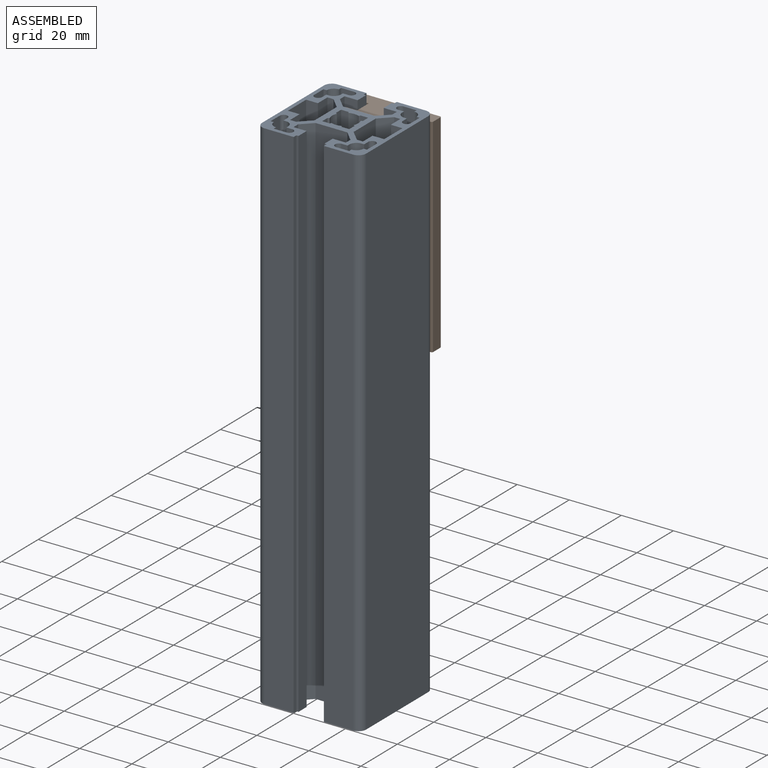
[diagram: assembled view]
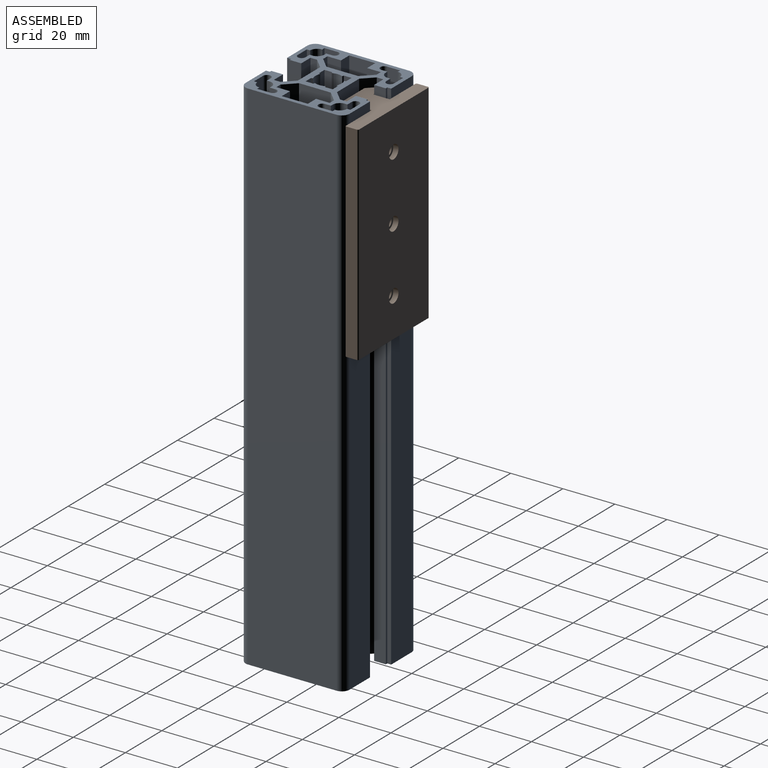
[diagram: assembled view, second angle]
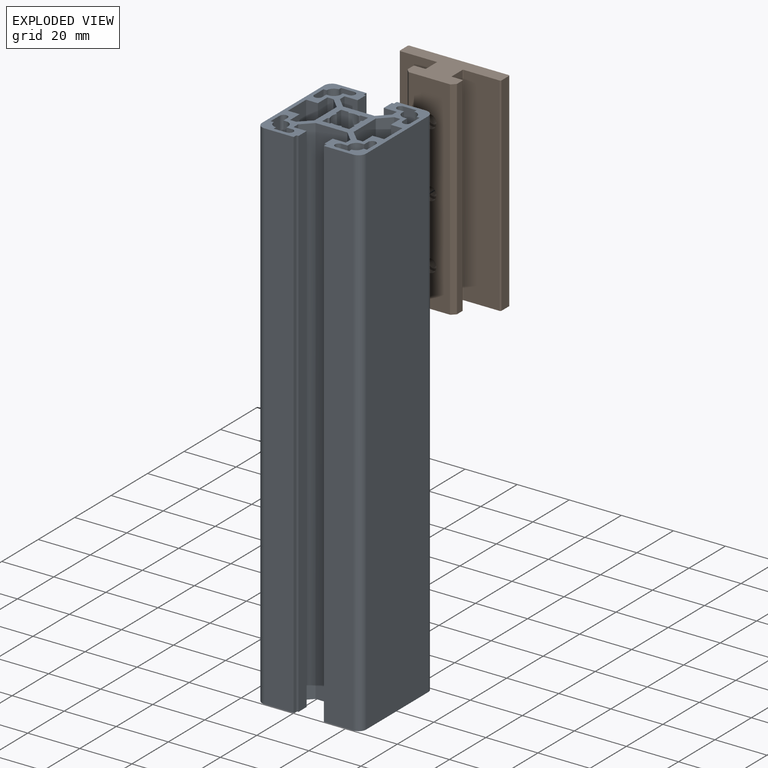
[diagram: exploded view]
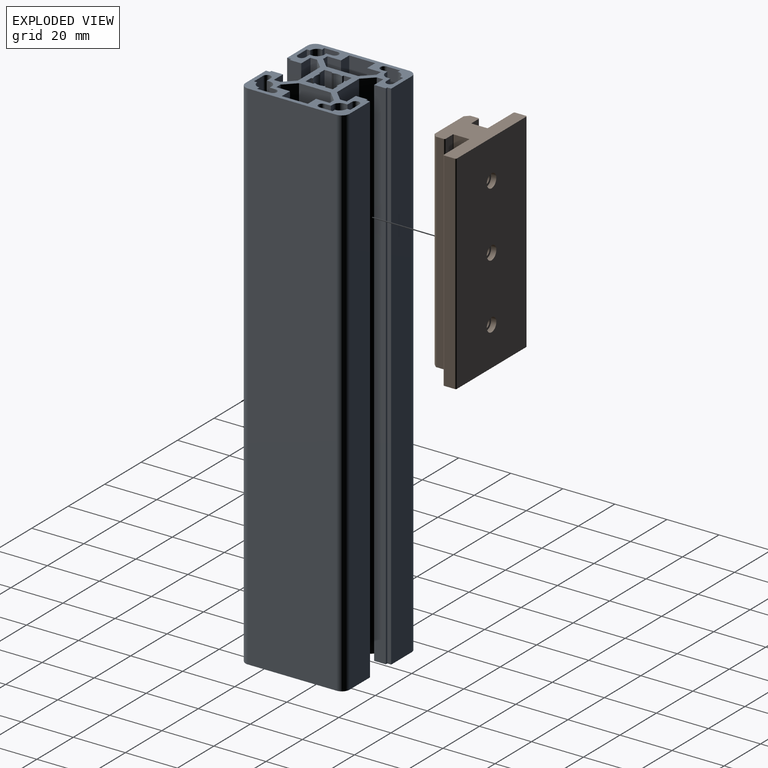
[diagram: exploded view, second angle]
ASSEMBLY  parts=2 mates=2
PART A: 126 faces, bbox 40x40x200 mm
  f0: cylinder r=1.5mm len=200mm, axis (0,0,1), area 942.5mm2, adj f39,f40,f116,f117
  f1: cylinder r=1.5mm len=200mm, axis (0,0,1), area 942.5mm2, adj f39,f40,f104,f114
  f2: cylinder r=5mm len=200mm, axis (0,0,1), area 820.1mm2, adj f39,f40,f51,f69
  f3: plane 200x1.5mm, normal (-1,0,0), area 300mm2, adj f4,f38,f39,f40
  f4: plane 200x0.8mm, normal (0,-1,0), area 160mm2, adj f3,f5,f39,f40
  f5: plane 200x4.5mm, normal (-1,0,0), area 900mm2, adj f4,f6,f39,f40
  f6: plane 200x5.05mm, normal (0,1,0), area 1010mm2, adj f5,f7,f39,f40
  f7: plane 200x2.54mm, normal (-1,0,0), area 507.2mm2, adj f6,f8,f39,f40
  f8: plane 200x3.96mm, normal (-0.71,-0.71,0), area 1121.2mm2, adj f7,f9,f39,f40
  f9: plane 200x12.17mm, normal (0,-1,0), area 2434.3mm2, adj f8,f10,f39,f40
  f10: plane 200x3.96mm, normal (0.71,-0.71,0), area 1121.2mm2, adj f9,f11,f39,f40
  f11: plane 200x2.54mm, normal (1,0,0), area 507.2mm2, adj f10,f12,f39,f40
  f12: plane 200x5.05mm, normal (0,1,0), area 1010mm2, adj f11,f13,f39,f40
  f13: plane 200x4.5mm, normal (1,0,0), area 900mm2, adj f12,f14,f39,f40
  f14: plane 200x0.8mm, normal (0,-1,0), area 160mm2, adj f13,f15,f39,f40
  f15: plane 200x1.5mm, normal (1,0,0), area 300mm2, adj f14,f16,f39,f40
  f16: plane 200x11.2mm, normal (0,-1,0), area 2240mm2, adj f15,f17,f39,f40
  f17: cylinder r=3mm len=200mm, axis (0,0,1), area 942.5mm2, adj f16,f18,f39,f40
  f18: plane 200x34mm, normal (-1,0,0), area 6800mm2, adj f17,f19,f39,f40
  f19: cylinder r=3mm len=200mm, axis (0,0,1), area 942.5mm2, adj f18,f20,f39,f40
  f20: plane 200x11.2mm, normal (0,1,0), area 2240mm2, adj f19,f21,f39,f40
  f21: plane 200x1.5mm, normal (1,0,0), area 300mm2, adj f20,f22,f39,f40
  f22: plane 200x0.8mm, normal (0,1,0), area 160mm2, adj f21,f23,f39,f40
  f23: plane 200x4.5mm, normal (1,0,0), area 900mm2, adj f22,f24,f39,f40
  f24: plane 200x5.05mm, normal (0,-1,0), area 1010mm2, adj f23,f25,f39,f40
  f25: plane 200x2.54mm, normal (1,0,0), area 507.2mm2, adj f24,f26,f39,f40
  f26: plane 200x3.96mm, normal (0.71,0.71,0), area 1121.2mm2, adj f25,f27,f39,f40
  f27: plane 200x12.17mm, normal (0,1,0), area 2434.3mm2, adj f26,f28,f39,f40
  f28: plane 200x3.96mm, normal (-0.71,0.71,0), area 1121.2mm2, adj f27,f29,f39,f40
  f29: plane 200x2.54mm, normal (-1,0,0), area 507.2mm2, adj f28,f30,f39,f40
  f30: plane 200x5.05mm, normal (0,-1,0), area 1010mm2, adj f29,f31,f39,f40
  f31: plane 200x4.5mm, normal (-1,0,0), area 900mm2, adj f30,f32,f39,f40
  f32: plane 200x0.8mm, normal (0,1,0), area 160mm2, adj f31,f33,f39,f40
  f33: plane 200x1.5mm, normal (-1,0,0), area 300mm2, adj f32,f34,f39,f40
  f34: plane 200x11.2mm, normal (0,1,0), area 2240mm2, adj f33,f35,f39,f40
  f35: cylinder r=3mm len=200mm, axis (0,0,1), area 942.5mm2, adj f34,f36,f39,f40
  f36: plane 200x34mm, normal (1,0,0), area 6800mm2, adj f35,f37,f39,f40
  f37: cylinder r=3mm len=200mm, axis (0,0,1), area 942.5mm2, adj f36,f38,f39,f40
  f38: plane 200x11.2mm, normal (0,-1,0), area 2240mm2, adj f3,f37,f39,f40
  f39: plane 40x40mm, normal (0,0,-1), area 595.8mm2, adj f0,f1,f2,f3,f4,f5,f6,f7
  f40: plane 40x40mm, normal (0,0,1), area 595.8mm2, adj f0,f1,f2,f3,f4,f5,f6,f7
  f41: plane 200x4.5mm, normal (0,1,0), area 900mm2, adj f39,f40,f42,f50
  f42: plane 200x5.25mm, normal (-1,0,0), area 1050mm2, adj f39,f40,f41,f43
  f43: plane 200x2.34mm, normal (0,1,0), area 467.2mm2, adj f39,f40,f42,f44
  f44: plane 200x4.16mm, normal (0.71,0.71,0), area 1177.8mm2, adj f39,f40,f43,f45
  f45: plane 200x12.17mm, normal (1,0,0), area 2434.3mm2, adj f39,f40,f44,f46
  f46: plane 200x4.16mm, normal (0.71,-0.71,0), area 1177.8mm2, adj f39,f40,f45,f47
  f47: plane 200x2.34mm, normal (0,-1,0), area 467.2mm2, adj f39,f40,f46,f48
  f48: plane 200x5.25mm, normal (-1,0,0), area 1050mm2, adj f39,f40,f47,f49
  f49: plane 200x4.5mm, normal (0,-1,0), area 900mm2, adj f39,f40,f48,f50
  f50: plane 200x10mm, normal (-1,0,0), area 2000mm2, adj f39,f40,f41,f49
  f51: plane 200x0.61mm, normal (-0.4,-0.92,0), area 134mm2, adj f2,f39,f40,f52
  f52: plane 200x2.94mm, normal (-1,0,0), area 587.9mm2, adj f39,f40,f51,f53
  f53: plane 200x2.94mm, normal (0,1,0), area 587.9mm2, adj f39,f40,f52,f54
  f54: plane 200x0.61mm, normal (0.92,0.4,0), area 134mm2, adj f39,f40,f53,f55
  f55: cylinder r=5mm len=200mm, axis (0,0,1), area 820.1mm2, adj f39,f40,f54,f56
  f56: plane 200x0.61mm, normal (-0.92,0.4,0), area 134mm2, adj f39,f40,f55,f57
  f57: plane 200x2.94mm, normal (0,1,0), area 587.9mm2, adj f39,f40,f56,f58
  f58: plane 200x2.94mm, normal (1,0,0), area 587.9mm2, adj f39,f40,f57,f59
  f59: plane 200x0.61mm, normal (0.4,-0.92,0), area 134mm2, adj f39,f40,f58,f60
  f60: cylinder r=5mm len=200mm, axis (0,0,1), area 820.1mm2, adj f39,f40,f59,f61
  f61: plane 200x0.61mm, normal (0.4,0.92,0), area 134mm2, adj f39,f40,f60,f62
  f62: plane 200x2.94mm, normal (1,0,0), area 587.9mm2, adj f39,f40,f61,f63
  f63: plane 200x2.94mm, normal (0,-1,0), area 587.9mm2, adj f39,f40,f62,f64
  f64: plane 200x0.61mm, normal (-0.92,-0.4,0), area 134mm2, adj f39,f40,f63,f65
  f65: cylinder r=5mm len=200mm, axis (0,0,1), area 820.1mm2, adj f39,f40,f64,f66
  f66: plane 200x0.61mm, normal (0.92,-0.4,0), area 134mm2, adj f39,f40,f65,f67
  f67: plane 200x2.94mm, normal (0,-1,0), area 587.9mm2, adj f39,f40,f66,f68
  f68: plane 200x2.94mm, normal (-1,0,0), area 587.9mm2, adj f39,f40,f67,f69
  f69: plane 200x0.61mm, normal (-0.4,0.92,0), area 134mm2, adj f2,f39,f40,f68
  f70: plane 200x1.25mm, normal (-1,0,0), area 250mm2, adj f39,f40,f71,f81
  f71: plane 200x5mm, normal (0,1,0), area 1000mm2, adj f39,f40,f70,f72
  f72: cylinder r=1.5mm len=200mm, axis (0,0,1), area 942.5mm2, adj f39,f40,f71,f73
  f73: plane 200x2.25mm, normal (0,-1,0), area 450mm2, adj f39,f40,f72,f74
  f74: plane 200x1mm, normal (1,0,0), area 200mm2, adj f39,f40,f73,f75
  f75: cylinder r=2.75mm len=200mm, axis (0,0,1), area 863.9mm2, adj f39,f40,f74,f76
  f76: plane 200x1mm, normal (0,-1,0), area 200mm2, adj f39,f40,f75,f77
  f77: plane 200x2.25mm, normal (1,0,0), area 450mm2, adj f39,f40,f76,f78
  f78: cylinder r=1.5mm len=200mm, axis (0,0,1), area 942.5mm2, adj f39,f40,f77,f79
  f79: plane 200x5mm, normal (-1,0,0), area 1000mm2, adj f39,f40,f78,f80
  f80: plane 200x1.25mm, normal (0,1,0), area 250mm2, adj f39,f40,f79,f81
  f81: cylinder r=2.75mm len=200mm, axis (0,0,1), area 863.9mm2, adj f39,f40,f70,f80
  f82: cylinder r=1.5mm len=200mm, axis (0,0,1), area 942.5mm2, adj f39,f40,f83,f93
  f83: plane 200x5mm, normal (0,-1,0), area 1000mm2, adj f39,f40,f82,f84
  f84: plane 200x1.25mm, normal (-1,0,0), area 250mm2, adj f39,f40,f83,f85
  f85: cylinder r=2.75mm len=200mm, axis (0,0,1), area 863.9mm2, adj f39,f40,f84,f86
  f86: plane 200x1.25mm, normal (0,-1,0), area 250mm2, adj f39,f40,f85,f87
  f87: plane 200x5mm, normal (-1,0,0), area 1000mm2, adj f39,f40,f86,f88
  f88: cylinder r=1.5mm len=200mm, axis (0,0,1), area 942.5mm2, adj f39,f40,f87,f89
  f89: plane 200x2.25mm, normal (1,0,0), area 450mm2, adj f39,f40,f88,f90
  f90: plane 200x1mm, normal (0,1,0), area 200mm2, adj f39,f40,f89,f91
  f91: cylinder r=2.75mm len=200mm, axis (0,0,1), area 863.9mm2, adj f39,f40,f90,f92
  f92: plane 200x1mm, normal (1,0,0), area 200mm2, adj f39,f40,f91,f93
  f93: plane 200x2.25mm, normal (0,1,0), area 450mm2, adj f39,f40,f82,f92
  f94: plane 200x4.16mm, normal (-0.71,-0.71,0), area 1177.8mm2, adj f39,f40,f95,f103
  f95: plane 200x12.17mm, normal (-1,0,0), area 2434.3mm2, adj f39,f40,f94,f96
  f96: plane 200x4.16mm, normal (-0.71,0.71,0), area 1177.8mm2, adj f39,f40,f95,f97
  f97: plane 200x2.34mm, normal (0,1,0), area 467.2mm2, adj f39,f40,f96,f98
  f98: plane 200x5.25mm, normal (1,0,0), area 1050mm2, adj f39,f40,f97,f99
  f99: plane 200x4.5mm, normal (0,1,0), area 900mm2, adj f39,f40,f98,f100
  f100: plane 200x10mm, normal (1,0,0), area 2000mm2, adj f39,f40,f99,f101
  f101: plane 200x4.5mm, normal (0,-1,0), area 900mm2, adj f39,f40,f100,f102
  f102: plane 200x5.25mm, normal (1,0,0), area 1050mm2, adj f39,f40,f101,f103
  f103: plane 200x2.34mm, normal (0,-1,0), area 467.2mm2, adj f39,f40,f94,f102
  f104: plane 200x5mm, normal (0,1,0), area 1000mm2, adj f1,f39,f40,f105
  f105: plane 200x1.25mm, normal (1,0,0), area 250mm2, adj f39,f40,f104,f106
  f106: cylinder r=2.75mm len=200mm, axis (0,0,1), area 863.9mm2, adj f39,f40,f105,f107
  f107: plane 200x1.25mm, normal (0,1,0), area 250mm2, adj f39,f40,f106,f108
  f108: plane 200x5mm, normal (1,0,0), area 1000mm2, adj f39,f40,f107,f109
  f109: cylinder r=1.5mm len=200mm, axis (0,0,1), area 942.5mm2, adj f39,f40,f108,f110
  f110: plane 200x2.25mm, normal (-1,0,0), area 450mm2, adj f39,f40,f109,f111
  f111: plane 200x1mm, normal (0,-1,0), area 200mm2, adj f39,f40,f110,f112
  f112: cylinder r=2.75mm len=200mm, axis (0,0,1), area 863.9mm2, adj f39,f40,f111,f113
  f113: plane 200x1mm, normal (-1,0,0), area 200mm2, adj f39,f40,f112,f114
  f114: plane 200x2.25mm, normal (0,-1,0), area 450mm2, adj f1,f39,f40,f113
  f115: plane 200x1.25mm, normal (1,0,0), area 250mm2, adj f39,f40,f116,f125
  f116: plane 200x5mm, normal (0,-1,0), area 1000mm2, adj f0,f39,f40,f115
  f117: plane 200x2.25mm, normal (0,1,0), area 450mm2, adj f0,f39,f40,f118
  f118: plane 200x1mm, normal (-1,0,0), area 200mm2, adj f39,f40,f117,f119
  f119: cylinder r=2.75mm len=200mm, axis (0,0,1), area 863.9mm2, adj f39,f40,f118,f120
  f120: plane 200x1mm, normal (0,1,0), area 200mm2, adj f39,f40,f119,f121
  f121: plane 200x2.25mm, normal (-1,0,0), area 450mm2, adj f39,f40,f120,f122
  f122: cylinder r=1.5mm len=200mm, axis (0,0,1), area 942.5mm2, adj f39,f40,f121,f123
  f123: plane 200x5mm, normal (1,0,0), area 1000mm2, adj f39,f40,f122,f124
  f124: plane 200x1.25mm, normal (0,-1,0), area 250mm2, adj f39,f40,f123,f125
  f125: cylinder r=2.75mm len=200mm, axis (0,0,1), area 863.9mm2, adj f39,f40,f115,f124
PART B: 45 faces, bbox 39x16.3x80 mm
  f0: cylinder r=2.6mm len=5.2mm, axis (0,1,0), area 32.7mm2, adj f16,f44
  f1: cylinder r=1.75mm len=12.3mm, axis (0,1,0), area 135.2mm2, adj f43,f44
  f2: cylinder r=2.6mm len=5.2mm, axis (0,1,0), area 32.7mm2, adj f30,f43
  f3: cylinder r=2.6mm len=5.2mm, axis (0,1,0), area 32.7mm2, adj f16,f42
  f4: cylinder r=1.75mm len=12.3mm, axis (0,1,0), area 135.2mm2, adj f41,f42
  f5: cylinder r=2.6mm len=5.2mm, axis (0,1,0), area 32.7mm2, adj f30,f41
  f6: cylinder r=2.6mm len=5.2mm, axis (0,1,0), area 32.7mm2, adj f16,f40
  f7: cylinder r=1.75mm len=12.3mm, axis (0,1,0), area 135.2mm2, adj f39,f40
  f8: cylinder r=2.6mm len=5.2mm, axis (0,1,0), area 32.7mm2, adj f30,f39
  f9: cylinder r=0.2mm len=80mm, axis (0,0,-1), area 25.1mm2, adj f10,f36,f37,f38
  f10: plane 80x3.85mm, normal (0,1,0), area 308mm2, adj f9,f11,f37,f38
  f11: cylinder r=0.5mm len=80mm, axis (0,0,-1), area 62.8mm2, adj f10,f12,f37,f38
  f12: plane 80x2.79mm, normal (-1,0,0), area 223.4mm2, adj f11,f13,f37,f38
  f13: cylinder r=0.5mm len=80mm, axis (0,0,-1), area 31.4mm2, adj f12,f14,f37,f38
  f14: plane 80x1.21mm, normal (-0.71,-0.71,0), area 136.6mm2, adj f13,f15,f37,f38
  f15: cylinder r=0.5mm len=80mm, axis (0,0,-1), area 31.4mm2, adj f14,f16,f37,f38
  f16: plane 80x15.59mm, normal (0,-1,0), area 1183.2mm2, adj f0,f3,f6,f15,f17,f37,f38
  f17: cylinder r=0.5mm len=80mm, axis (0,0,-1), area 31.4mm2, adj f16,f18,f37,f38
  f18: plane 80x1.21mm, normal (0.71,-0.71,0), area 136.6mm2, adj f17,f19,f37,f38
  f19: cylinder r=0.5mm len=80mm, axis (0,0,-1), area 31.4mm2, adj f18,f20,f37,f38
  f20: plane 80x2.79mm, normal (1,0,0), area 223.4mm2, adj f19,f21,f37,f38
  f21: cylinder r=0.5mm len=80mm, axis (0,0,-1), area 62.8mm2, adj f20,f22,f37,f38
  f22: plane 80x3.85mm, normal (0,1,0), area 308mm2, adj f21,f23,f37,f38
  f23: cylinder r=0.2mm len=80mm, axis (0,0,-1), area 25.1mm2, adj f22,f24,f37,f38
  f24: plane 80x5.9mm, normal (1,0,0), area 472mm2, adj f23,f25,f37,f38
  f25: cylinder r=0.2mm len=80mm, axis (0,0,-1), area 25.1mm2, adj f24,f26,f37,f38
  f26: plane 80x13.85mm, normal (0,-1,0), area 1108mm2, adj f25,f27,f37,f38
  f27: cylinder r=0.5mm len=80mm, axis (0,0,-1), area 62.8mm2, adj f26,f28,f37,f38
  f28: plane 80x4mm, normal (1,0,0), area 320mm2, adj f27,f29,f37,f38
  f29: cylinder r=0.5mm len=80mm, axis (0,0,-1), area 62.8mm2, adj f28,f30,f37,f38
  f30: plane 80x38mm, normal (0,1,0), area 2976.3mm2, adj f2,f5,f8,f29,f31,f37,f38
  f31: cylinder r=0.5mm len=80mm, axis (0,0,-1), area 62.8mm2, adj f30,f32,f37,f38
  f32: plane 80x4mm, normal (-1,0,0), area 320mm2, adj f31,f33,f37,f38
  f33: cylinder r=0.5mm len=80mm, axis (0,0,-1), area 62.8mm2, adj f32,f34,f37,f38
  f34: plane 80x13.85mm, normal (0,-1,0), area 1108mm2, adj f33,f35,f37,f38
  f35: cylinder r=0.2mm len=80mm, axis (0,0,-1), area 25.1mm2, adj f34,f36,f37,f38
  f36: plane 80x5.9mm, normal (-1,0,0), area 472mm2, adj f9,f35,f37,f38
  f37: plane 39x16.3mm, normal (0,0,1), area 349.8mm2, adj f9,f10,f11,f12,f13,f14,f15,f16
  f38: plane 39x16.3mm, normal (0,0,-1), area 349.8mm2, adj f9,f10,f11,f12,f13,f14,f15,f16
  f39: plane 5.2x5.2mm, normal (0,1,0), area 11.6mm2, adj f7,f8
  f40: plane 5.2x5.2mm, normal (0,-1,0), area 11.6mm2, adj f6,f7
  f41: plane 5.2x5.2mm, normal (0,1,0), area 11.6mm2, adj f4,f5
  f42: plane 5.2x5.2mm, normal (0,-1,0), area 11.6mm2, adj f3,f4
  f43: plane 5.2x5.2mm, normal (0,1,0), area 11.6mm2, adj f1,f2
  f44: plane 5.2x5.2mm, normal (0,-1,0), area 11.6mm2, adj f0,f1
PLACE A t=(9.61,-25.22,-25.69)mm
PLACE B t=(-137.33,-93.88,-109.09)mm
MATE planar B.f26 <-> A.f34  axis (0,-1,0) through (21.63,-5.22,-69.09)mm
MATE planar B.f36 <-> A.f23  axis (-1,0,0) through (4.61,-8.37,-69.09)mm
